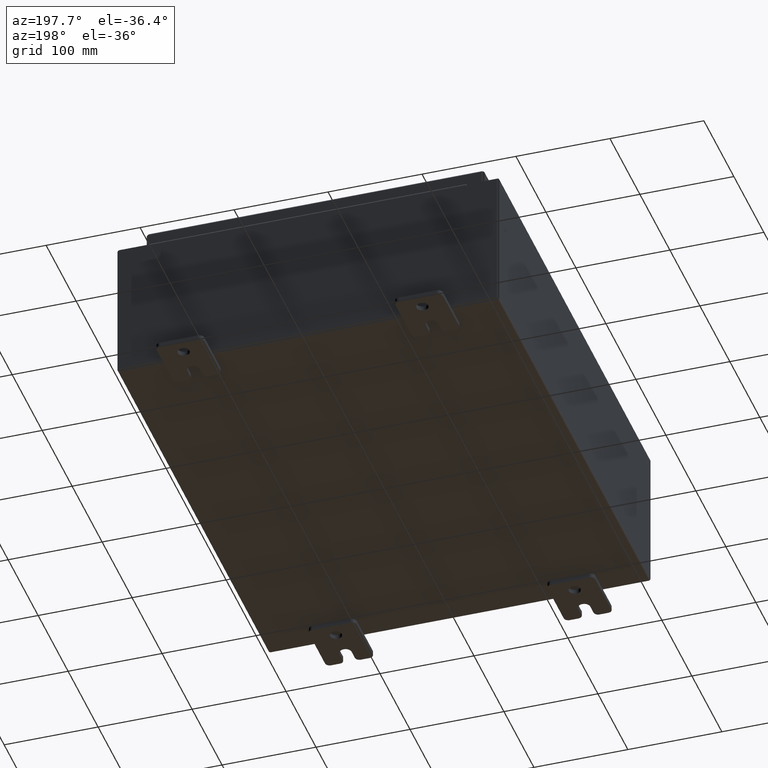
[diagram: clean part render]
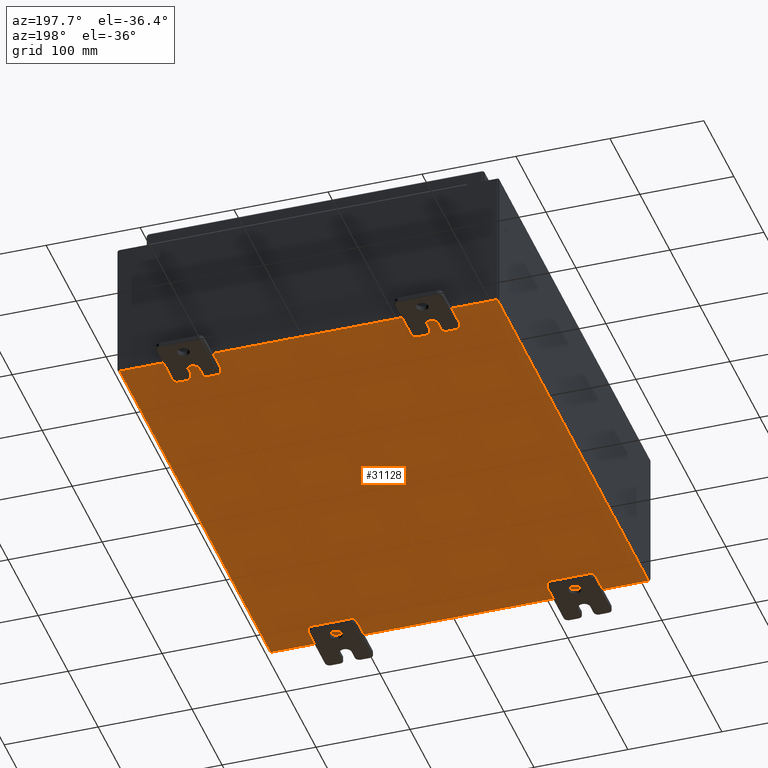
[diagram: same view with one face highlighted and labeled with its STEP entity id]
A machine part, auxiliary view. The second image highlights one B-rep face of the part: STEP entity #31128.
In plain terms, the highlighted planar face has unit normal (0, 0, -1).
Its self-contained STEP definition (entity closure, byte-faithful):
#886 = CARTESIAN_POINT ( 'NONE',  ( -7.912299999999997400, -9.925300000000001800, -0.07469999999999994700 ) ) ;
#1809 = EDGE_CURVE ( 'NONE', #77466, #48406, #96097, .T. ) ;
#2816 = AXIS2_PLACEMENT_3D ( 'NONE', #105818, #88892, #13312 ) ;
#4806 = PLANE ( 'NONE',  #2816 ) ;
#13312 = DIRECTION ( 'NONE',  ( -1.000000000000000000, 0.0000000000000000000, -0.0000000000000000000 ) ) ;
#17867 = DIRECTION ( 'NONE',  ( -0.0000000000000000000, 1.000000000000000000, -0.0000000000000000000 ) ) ;
#21575 = VERTEX_POINT ( 'NONE', #73150 ) ;
#22012 = DIRECTION ( 'NONE',  ( -0.0000000000000000000, -1.000000000000000000, -0.0000000000000000000 ) ) ;
#22106 = LINE ( 'NONE', #107887, #89422 ) ;
#22457 = EDGE_CURVE ( 'NONE', #52746, #21575, #22106, .T. ) ;
#23474 = VECTOR ( 'NONE', #41378, 39.37007874015748100 ) ;
#31128 = ADVANCED_FACE ( 'NONE', ( #92558 ), #4806, .T. ) ;
#31904 = LINE ( 'NONE', #72485, #76766 ) ;
#32191 = ORIENTED_EDGE ( 'NONE', *, *, #22457, .F. ) ;
#38880 = EDGE_LOOP ( 'NONE', ( #32191, #97590, #76136, #53286 ) ) ;
#40238 = LINE ( 'NONE', #886, #57390 ) ;
#41378 = DIRECTION ( 'NONE',  ( -1.000000000000000000, -0.0000000000000000000, -0.0000000000000000000 ) ) ;
#41722 = EDGE_CURVE ( 'NONE', #77466, #21575, #31904, .T. ) ;
#48406 = VERTEX_POINT ( 'NONE', #72243 ) ;
#48875 = DIRECTION ( 'NONE',  ( 1.000000000000000000, 0.0000000000000000000, 0.0000000000000000000 ) ) ;
#49541 = EDGE_CURVE ( 'NONE', #52746, #48406, #40238, .T. ) ;
#49827 = CARTESIAN_POINT ( 'NONE',  ( -7.999999999999997300, 9.925299999999998200, -0.07470000000000000300 ) ) ;
#52746 = VERTEX_POINT ( 'NONE', #87507 ) ;
#53286 = ORIENTED_EDGE ( 'NONE', *, *, #41722, .T. ) ;
#57390 = VECTOR ( 'NONE', #17867, 39.37007874015748100 ) ;
#72243 = CARTESIAN_POINT ( 'NONE',  ( -7.912299999999997400, 9.925299999999998200, -0.07470000000000000300 ) ) ;
#72485 = CARTESIAN_POINT ( 'NONE',  ( 7.912300000000001900, 9.925299999999998200, -0.07469999999999994700 ) ) ;
#73150 = CARTESIAN_POINT ( 'NONE',  ( 7.912300000000001900, -9.925300000000001800, -0.07470000000000000300 ) ) ;
#76136 = ORIENTED_EDGE ( 'NONE', *, *, #1809, .F. ) ;
#76766 = VECTOR ( 'NONE', #22012, 39.37007874015748100 ) ;
#77466 = VERTEX_POINT ( 'NONE', #82248 ) ;
#82248 = CARTESIAN_POINT ( 'NONE',  ( 7.912300000000001900, 9.925299999999996500, -0.07469999999999994700 ) ) ;
#87507 = CARTESIAN_POINT ( 'NONE',  ( -7.912299999999997400, -9.925300000000000000, -0.07469999999999994700 ) ) ;
#88892 = DIRECTION ( 'NONE',  ( 0.0000000000000000000, 0.0000000000000000000, -1.000000000000000000 ) ) ;
#89422 = VECTOR ( 'NONE', #48875, 39.37007874015748100 ) ;
#92558 = FACE_OUTER_BOUND ( 'NONE', #38880, .T. ) ;
#96097 = LINE ( 'NONE', #49827, #23474 ) ;
#97590 = ORIENTED_EDGE ( 'NONE', *, *, #49541, .T. ) ;
#105818 = CARTESIAN_POINT ( 'NONE',  ( 0.0000000000000000000, 0.0000000000000000000, -0.07470000000000000300 ) ) ;
#107887 = CARTESIAN_POINT ( 'NONE',  ( -7.999999999999997300, -9.925300000000001800, -0.07470000000000000300 ) ) ;